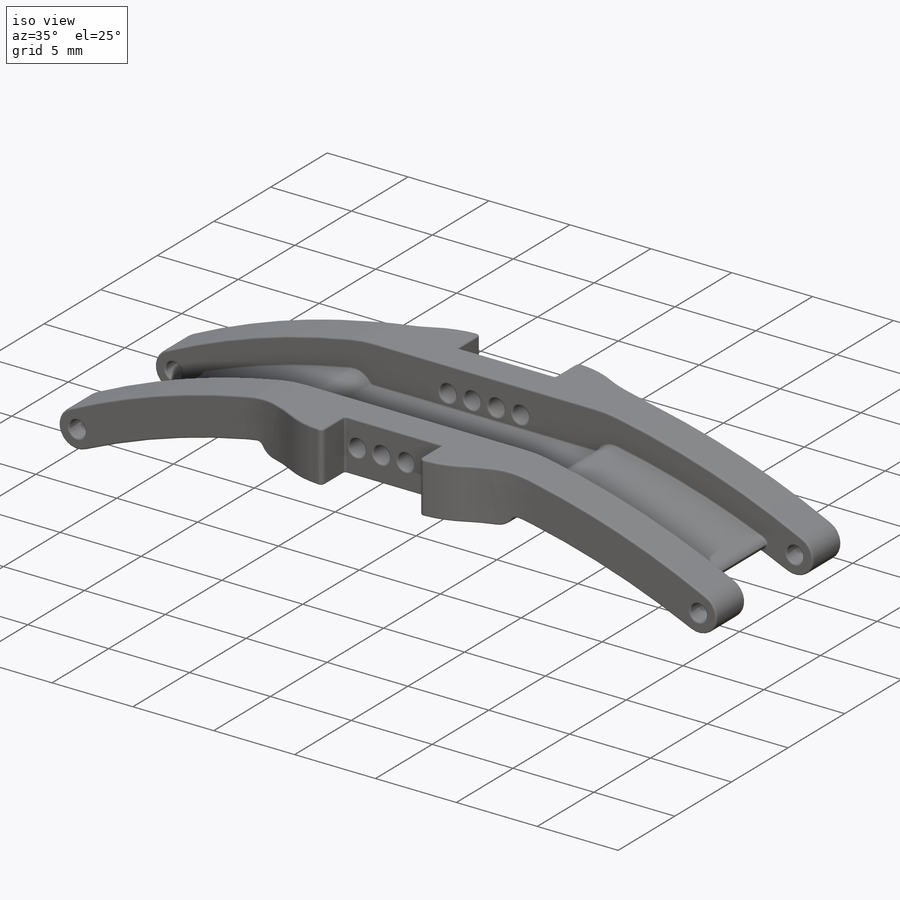
[diagram: iso view]
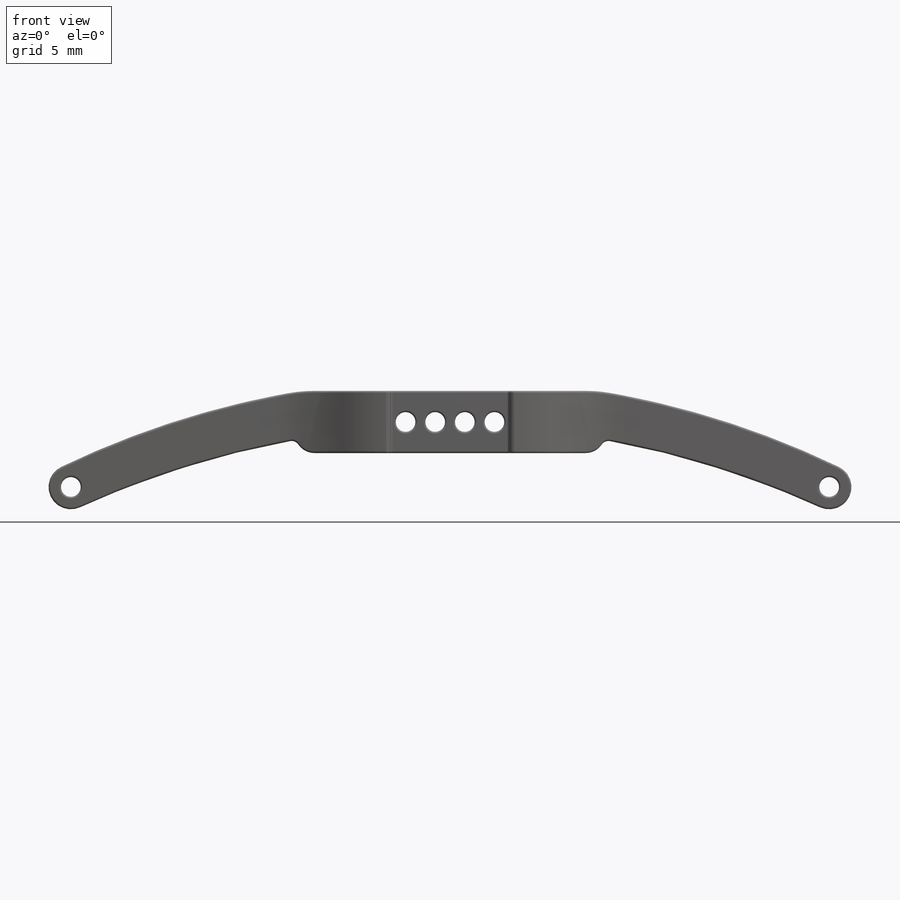
[diagram: front view]
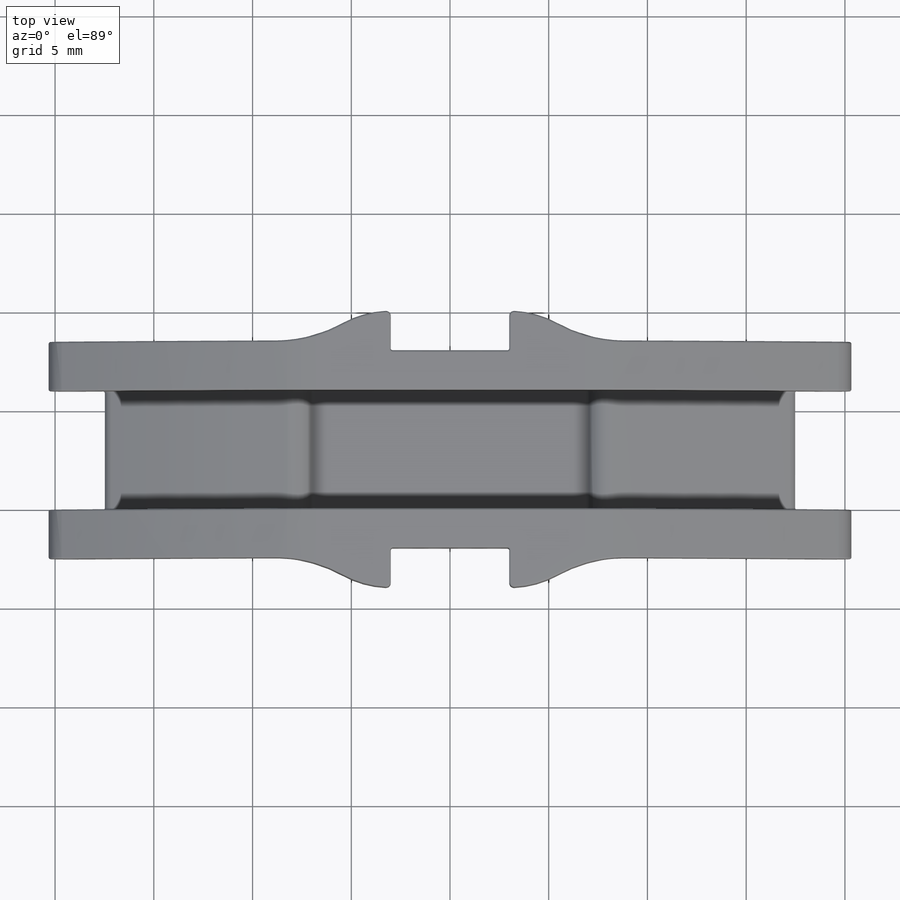
[diagram: top view]
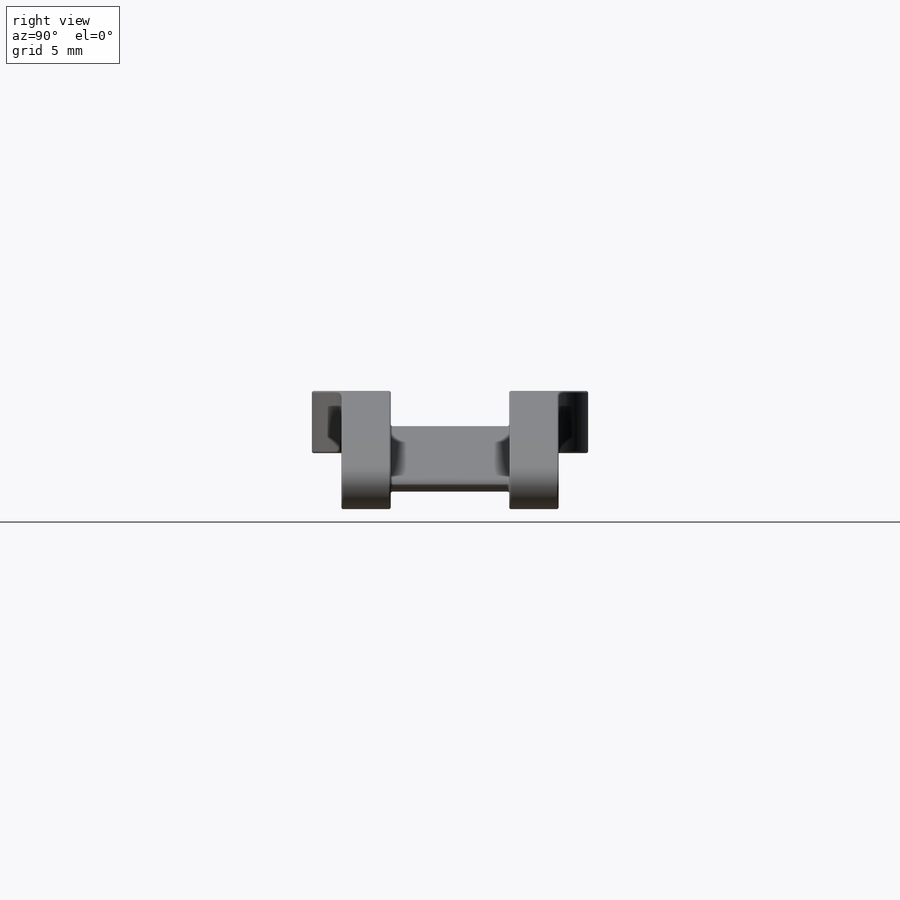
[diagram: right view]
SOLIDWORKS PART (.sldprt)
format: sldprt  version: not decoded by parser v0  size: 1,550,848 bytes
history: native  units: mm
features: sketch x8, cut_extrude x7, fillet x6, material x1, extrude x1 (+11 scaffold rows collapsed)
feature tree (34):
  scaffold x11  (default folders/planes/origin — collapsed)
  material  "Material <not specified>"
  sketch  "Sketch1"  dims[c1.D3=~95.821814mm c1.D4=45.0mm c1.D10=45.0mm c1.D11=45.0mm c1.D2=1.0mm c1.D6=0.4mm c1.D7=8.0mm c1.D1=20.0mm c2.D2=20.0mm c2.D3=6.5mm c2.D5=7.5mm c2.D6=7.5mm c2.D7=3.25mm c2.D8=2.5mm c2.D9=2.5mm]
  extrude  "Boss-Extrude1"  Depth=14mm
  fillet  "Fillet1"  Radius=1mm
  sketch  "Sketch2"  dims[c1.D1=16.0mm c1.D2=16.0mm c1.D3=~4.330918mm c2.D1=4.5mm c2.D2=4.5mm c2.D3=4.5mm c2.D4=4.5mm c2.D5=1.5mm c2.D6=1.5mm c2.D7=1.5mm c2.D8=1.5mm]
  cut_extrude  "Cut-Extrude1"  Depth=14mm
  fillet  "Fillet2"  Radius=7mm
  fillet  "Fillet3"  Radius=5mm
  sketch  "Sketch3"  dims[D1=2.0mm D2=2.0mm D3=6.0mm D4=3.0mm D5=6.0mm D6=3.0mm D7=2.0mm]
  cut_extrude  "Cut-Extrude2"  Depth=14mm
  fillet  "Fillet4"  Radius=0.25mm
  sketch  "Sketch4"  dims[c1.D1=6.0mm c1.D2=6.0mm c1.D3=2.5mm c1.D4=2.5mm c1.D5=3.0mm c1.D6=17.5mm c2.D5=17.5mm]
  cut_extrude  "Cut-Extrude3"  Depth=14mm
  sketch  "Sketch5"  dims[D1=0.75mm]
  cut_extrude  "Cut-Extrude4"  Depth=6mm
  sketch  "Sketch6"  dims[D1=1.0mm D2=1.0mm D3=1.0mm D4=1.0mm D5=0.75mm D6=0.75mm D7=1.5mm D8=1.5mm]
  cut_extrude  "Cut-Extrude5"  Depth=26mm
  fillet  "Fillet5"  Radius=0.5mm
  fillet  "Fillet6"  Radius=0.1mm
  sketch  "Sketch7"
  cut_extrude  "Cut-Extrude6"  Depth=0.01mm
  sketch  "Sketch8"
  cut_extrude  "Cut-Extrude7"  Depth=0.01mm
decode coverage: 20 of 22 modeling features carry decoded parameters
note: ~ marks probable driven/reference dimensions
note: suppression state not decoded; provenance and decode notes live in map.json
